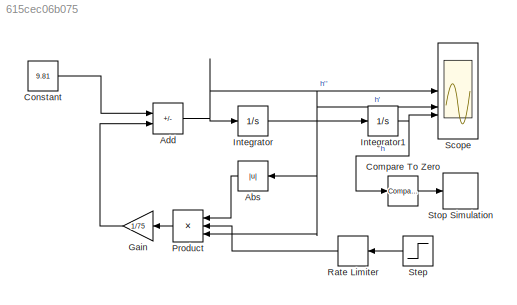
MODEL slx_615cec06b075
KIND model
CONFIG AbsTol = auto
CONFIG EnableMultiTasking = off
CONFIG FixedStep = auto
CONFIG MaxStep = auto
CONFIG MinStep = auto
CONFIG RelTol = 1e-3
CONFIG SampleTimeConstraint = Unconstrained
CONFIG SolverName = VariableStepAuto
CONFIG StartTime = 0.0
CONFIG StopTime = 40.0
BLOCK [Abs] Abs
  NameLocation = top
  SaturateOnIntegerOverflow = off
BLOCK [Sum] Add
  IconShape = rectangular
  Inputs = --
BLOCK [Reference] Compare To Zero  REF=simulink/Logic and Bit
Operations/Compare
To Zero
  SourceBlock = simulink/Logic and Bit\nOperations/Compare\nTo Zero
  SourceType = Compare To Zero
BLOCK [Constant] Constant
  Value = 9.81
BLOCK [Gain] Gain
  Gain = 1/75
  NameLocation = top
BLOCK [Integrator] Integrator
BLOCK [Integrator] Integrator1
  InitialCondition = 600
BLOCK [Product] Product
  Inputs = 3
  NameLocation = top
BLOCK [RateLimiter] Rate Limiter
  NameLocation = top
  RisingSlewLimit = 8
  SampleTimeMode = inherited
BLOCK [Scope] Scope
  ActiveDisplayYMaximum = 154.15680565143717
  ActiveDisplayYMinimum = -69.002007745668
  Floating = off
  GraphicalSettings = {"Style":{"BackgroundColor":[0.12941176470588237,0.12941176470588237,0.12941176470588237],"AxesColor":[0.07058823529411765,0.07058823529411765,0.07058823529411765],"LabelsColor":[0.8509803921568627,0.8509803921568627,0.8509803921568627],"PreserveColors":false,"Visible":[true,true,true],"LineStyle":["-","-","-"],"LineWidth":[1.5,1.5,1.5],"BarWidth":[0.9,0.9,0.9],"LineColor":["auto","auto","auto"],"...<+2822ch>
  LayoutDimensionsString = [3,1]
  MultipleDisplayCache = [{"MaxYLimMag":71.858154445008481,"MaxYLimReal":154.15680565143717,"MinYLimMag":0,"MinYLimReal":-69.002007745668,"PlotAsMagnitudePhase":false,"ShowGrid":true,"ShowLegend":false,"Title":"%<SignalLabel>","YLabel":""},{"MaxYLimMag":30.515283125492147,"MaxYLimReal":32.820653635347391,"MinYLimMag":0,"MinYLimReal":-50.562574736084706,"PlotAsMagnitudePhase":false,"ShowGrid":true,"ShowLegend":false,"Title...<+249ch>
  NumInputPorts = 3
  ScopeFrameLocation = window
  WasSavedAsWebScope = on
  WindowPosition = [476.000000,281.000000,739.000000,516.000000,]
BLOCK [Step] Step
  After = 25
  Before = 1
  NameLocation = top
  SampleTime = 0
  Time = 20
BLOCK [Stop] Stop Simulation
LINE Abs:1 -> Product:1
NET Add:1 -> Integrator:1, Scope:1
LINE Compare To Zero:1 -> Stop Simulation:1
LINE Constant:1 -> Add:1
LINE Gain:1 -> Add:2
NET Integrator1:1 -> Compare To Zero:1, Scope:3
NET Integrator:1 -> Abs:1, Integrator1:1, Product:3, Scope:2
LINE Product:1 -> Gain:1
LINE Rate Limiter:1 -> Product:2
LINE Step:1 -> Rate Limiter:1
note: NET lines group one-source signal fan-out (src -> all destinations, sorted); 1:1 wires keep LINE
